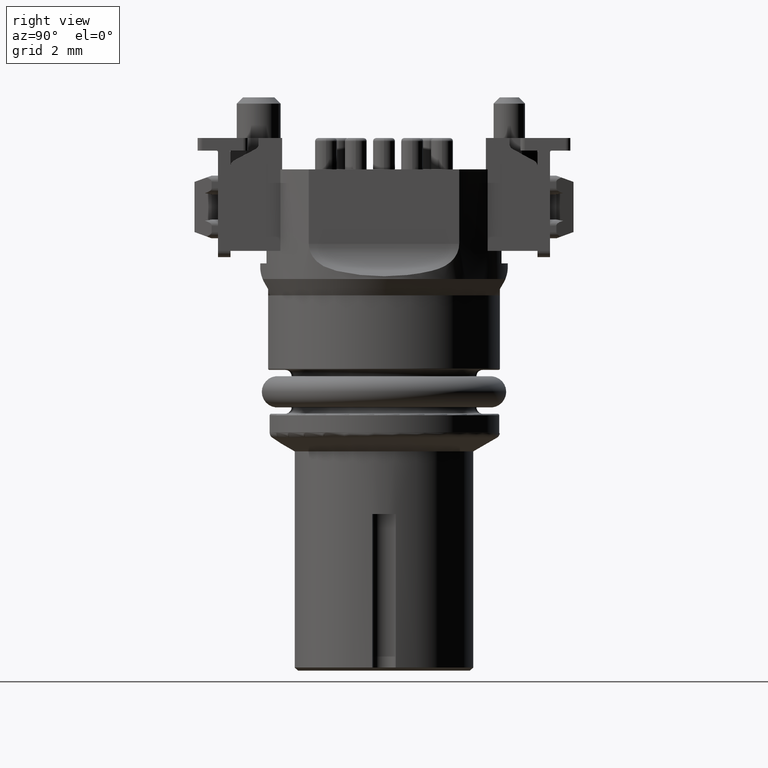
[diagram: clean part render]
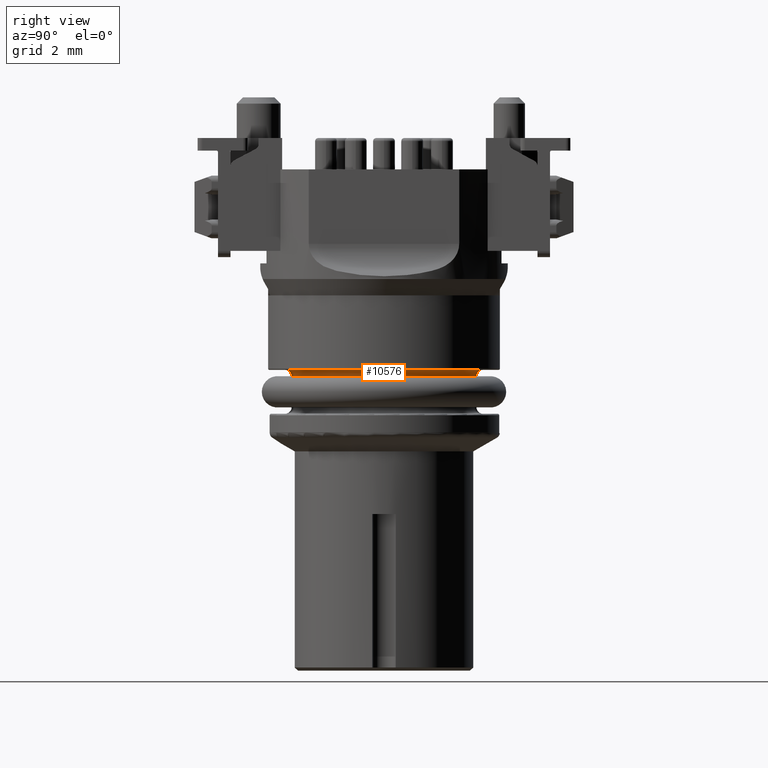
[diagram: same view with one face highlighted and labeled with its STEP entity id]
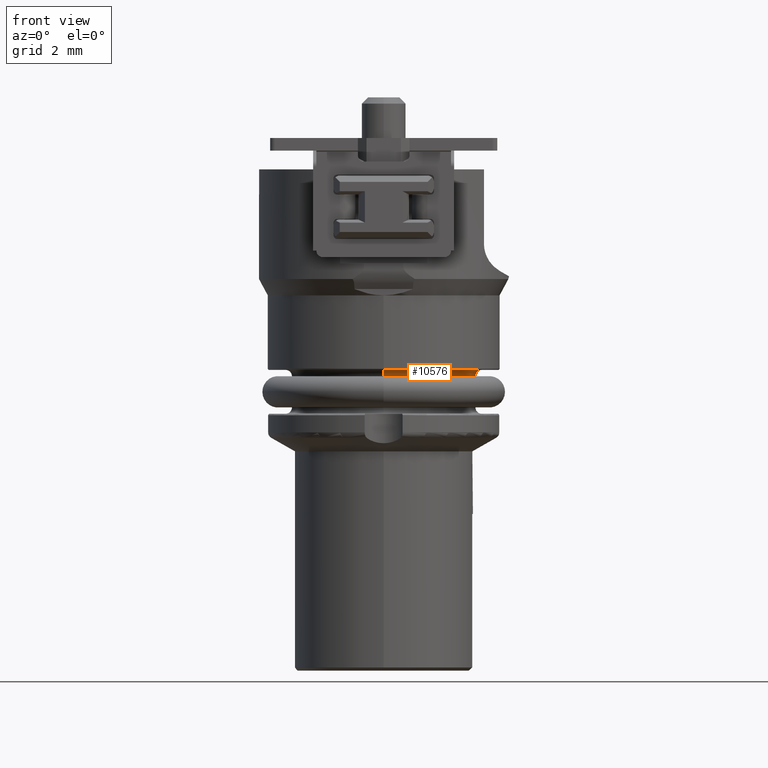
[diagram: same view with one face highlighted and labeled with its STEP entity id]
A machine part, right view. The second image highlights one B-rep face of the part: STEP entity #10576.
A second angle (front view) of the same face is appended — the face is thin or edge-on in the first view.
In plain terms, the highlighted toroidal blend (fillet) surface has major radius 3.15 mm and minor (blend) radius 0.2 mm.
Its self-contained STEP definition (entity closure, byte-faithful):
#2760=CARTESIAN_POINT('',(0.E0,0.E0,-7.4E0));
#2761=DIRECTION('',(0.E0,0.E0,-1.E0));
#2762=DIRECTION('',(0.E0,1.E0,0.E0));
#2763=AXIS2_PLACEMENT_3D('',#2760,#2761,#2762);
#2765=CARTESIAN_POINT('',(1.885991363082E-14,-3.15E0,-7.6E0));
#2766=DIRECTION('',(-1.E0,0.E0,0.E0));
#2767=DIRECTION('',(0.E0,1.909583602355E-13,1.E0));
#2768=AXIS2_PLACEMENT_3D('',#2765,#2766,#2767);
#2770=CARTESIAN_POINT('',(-1.646599523397E-14,3.15E0,-7.6E0));
#2771=DIRECTION('',(1.E0,0.E0,0.E0));
#2772=DIRECTION('',(0.E0,-1.887379141863E-13,1.E0));
#2773=AXIS2_PLACEMENT_3D('',#2770,#2771,#2772);
#2780=CARTESIAN_POINT('',(0.E0,0.E0,-7.6E0));
#2781=DIRECTION('',(0.E0,0.E0,-1.E0));
#2782=DIRECTION('',(0.E0,1.E0,0.E0));
#2783=AXIS2_PLACEMENT_3D('',#2780,#2781,#2782);
#5911=CARTESIAN_POINT('',(0.E0,-3.15E0,-7.4E0));
#5912=CARTESIAN_POINT('',(0.E0,3.15E0,-7.4E0));
#5913=VERTEX_POINT('',#5911);
#5914=VERTEX_POINT('',#5912);
#5915=CARTESIAN_POINT('',(0.E0,-2.95E0,-7.6E0));
#5916=CARTESIAN_POINT('',(0.E0,2.95E0,-7.6E0));
#5917=VERTEX_POINT('',#5915);
#5918=VERTEX_POINT('',#5916);
#10564=CARTESIAN_POINT('',(0.E0,0.E0,-7.6E0));
#10565=DIRECTION('',(0.E0,0.E0,1.E0));
#10566=DIRECTION('',(-1.729027774141E-2,9.998505119745E-1,0.E0));
#10567=AXIS2_PLACEMENT_3D('',#10564,#10565,#10566);
#10568=TOROIDAL_SURFACE('',#10567,3.15E0,2.E-1);
#10569=ORIENTED_EDGE('',*,*,#10544,.F.);
#10570=ORIENTED_EDGE('',*,*,#10559,.T.);
#10572=ORIENTED_EDGE('',*,*,#10571,.T.);
#10573=ORIENTED_EDGE('',*,*,#10555,.F.);
#10574=EDGE_LOOP('',(#10569,#10570,#10572,#10573));
#10575=FACE_OUTER_BOUND('',#10574,.F.);
#2764=CIRCLE('',#2763,3.15E0);
#2769=CIRCLE('',#2768,2.E-1);
#2774=CIRCLE('',#2773,2.E-1);
#2784=CIRCLE('',#2783,2.95E0);
#10544=EDGE_CURVE('',#5914,#5913,#2764,.T.);
#10555=EDGE_CURVE('',#5913,#5917,#2769,.T.);
#10559=EDGE_CURVE('',#5914,#5918,#2774,.T.);
#10571=EDGE_CURVE('',#5918,#5917,#2784,.T.);
#10576=ADVANCED_FACE('',(#10575),#10568,.F.);